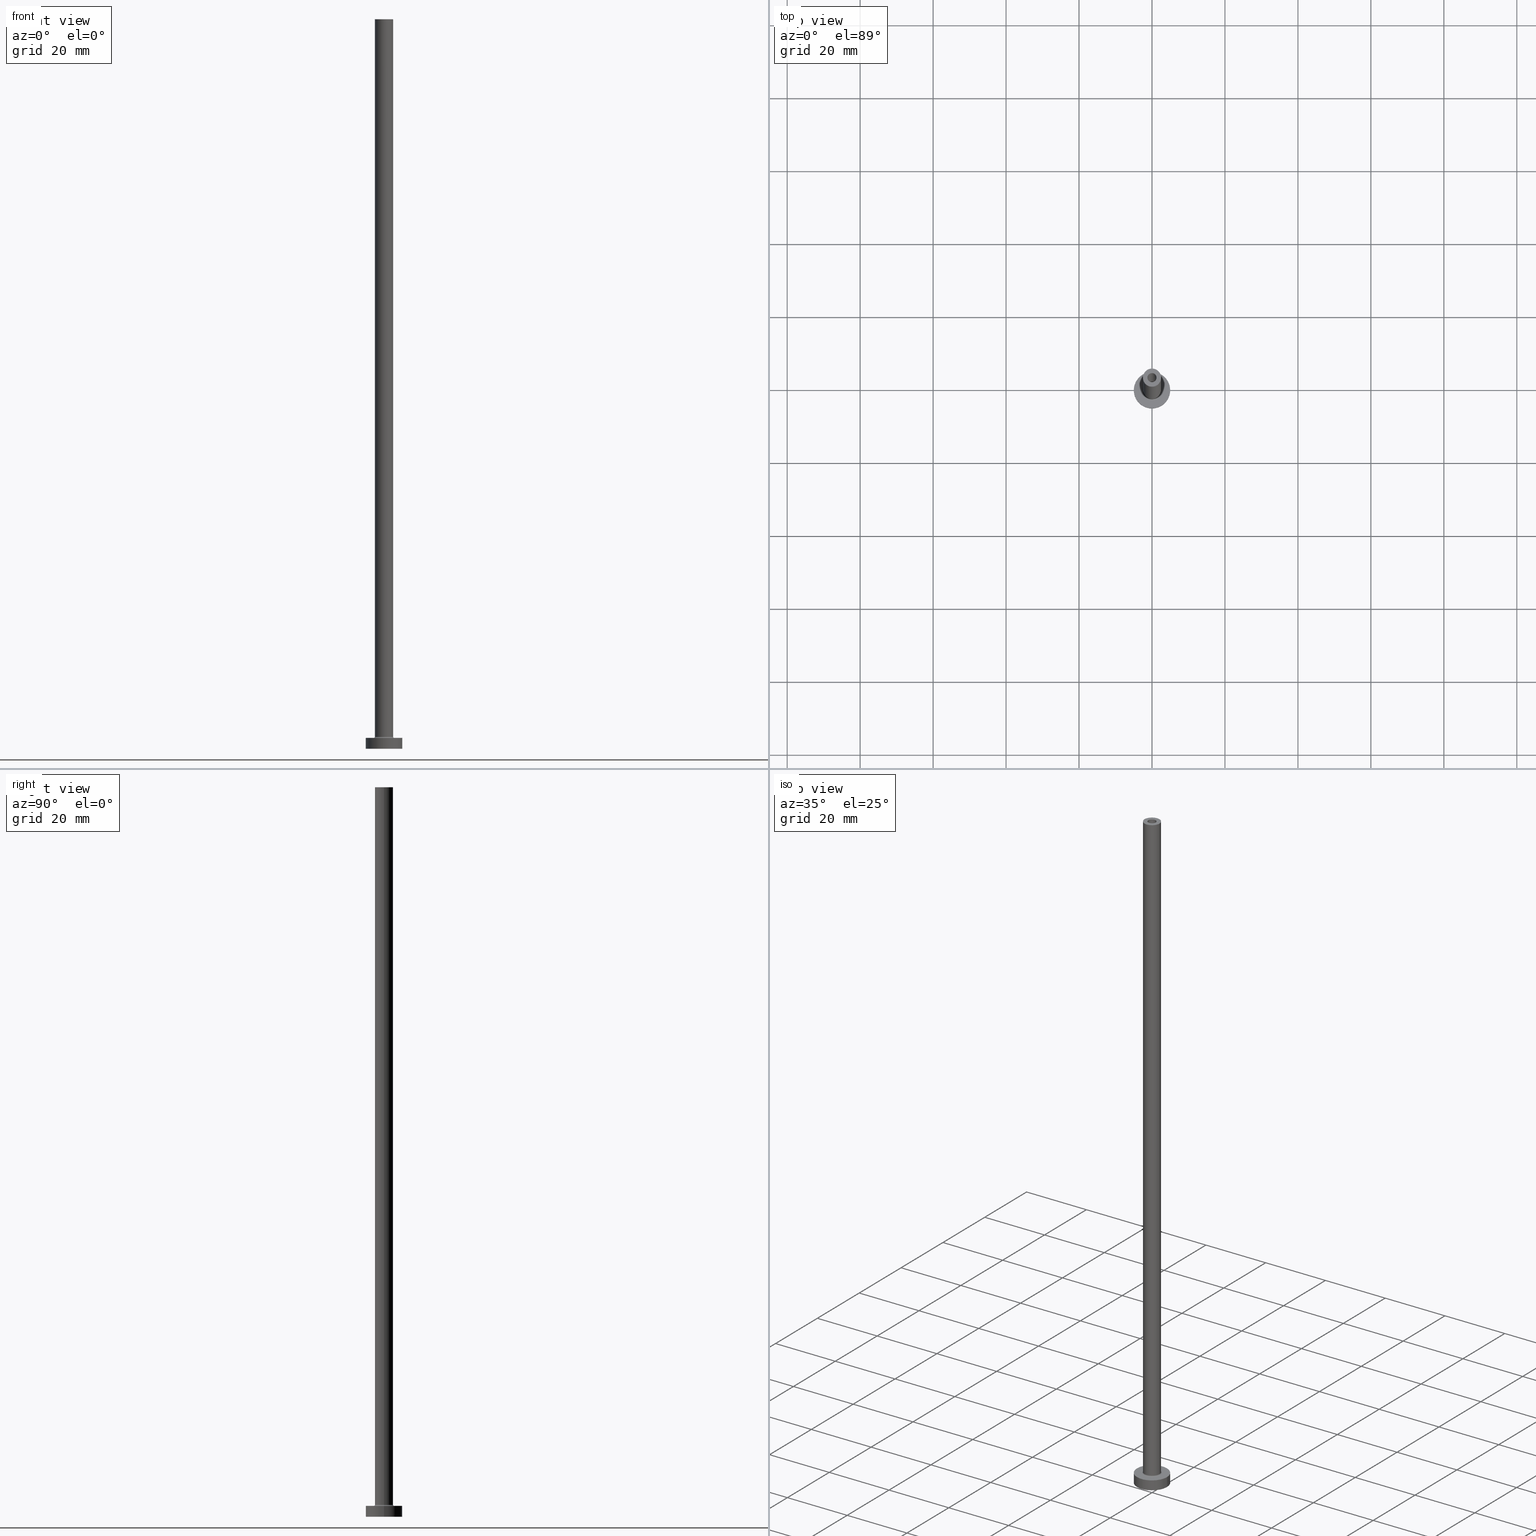
[diagram: canonical four-view strip — front | top / right | iso, engineering-drawing reading convention]
A machine part, canonical four-view strip (front | top / right | iso — engineering-drawing reading convention). The complete STEP part file that produces these views, byte-faithful:
ISO-10303-21;
HEADER;
FILE_DESCRIPTION (( 'STEP AP203' ),
    '1' );
FILE_NAME ('ef8b.STEP',
    '2024-01-17T11:39:49',
    ( '' ),
    ( '' ),
    'SwSTEP 2.0',
    'SolidWorks 2019',
    '' );
FILE_SCHEMA (( 'CONFIG_CONTROL_DESIGN' ));
ENDSEC;

DATA;
#1 = DIRECTION ( 'NONE',  ( 1.000000000000000000, 0.000000000000000000, -0.000000000000000000 ) ) ;
#2 = ORIENTED_EDGE ( 'NONE', *, *, #385, .F. ) ;
#3 = DIRECTION ( 'NONE',  ( -0.000000000000000000, -0.000000000000000000, -1.000000000000000000 ) ) ;
#4 = ORIENTED_EDGE ( 'NONE', *, *, #421, .T. ) ;
#5 = DIRECTION ( 'NONE',  ( 1.000000000000000000, 0.000000000000000000, 0.000000000000000000 ) ) ;
#6 = CARTESIAN_POINT ( 'NONE',  ( 0.000000000000000000, 0.000000000000000000, 3.299999999999997158 ) ) ;
#7 = ADVANCED_FACE ( 'NONE', ( #358 ), #306, .F. ) ;
#8 = DIRECTION ( 'NONE',  ( 0.000000000000000000, 0.000000000000000000, -1.000000000000000000 ) ) ;
#9 = DIRECTION ( 'NONE',  ( 1.000000000000000000, 0.000000000000000000, 0.000000000000000000 ) ) ;
#10 = DIRECTION ( 'NONE',  ( -1.000000000000000000, 0.000000000000000000, 0.000000000000000000 ) ) ;
#11 = VERTEX_POINT ( 'NONE', #151 ) ;
#12 = SECURITY_CLASSIFICATION ( '', '', #276 ) ;
#13 = CIRCLE ( 'NONE', #98, 1.399999999999999911 ) ;
#14 = FACE_OUTER_BOUND ( 'NONE', #255, .T. ) ;
#15 = CARTESIAN_POINT ( 'NONE',  ( 2.799999999999999822, 0.000000000000000000, 2.999999999999998668 ) ) ;
#16 = ORIENTED_EDGE ( 'NONE', *, *, #117, .T. ) ;
#17 = CYLINDRICAL_SURFACE ( 'NONE', #33, 5.000000000000000000 ) ;
#18 = DIRECTION ( 'NONE',  ( 0.000000000000000000, 0.000000000000000000, 1.000000000000000000 ) ) ;
#19 = VERTEX_POINT ( 'NONE', #182 ) ;
#20 = CARTESIAN_POINT ( 'NONE',  ( -2.500000000000000000, 0.000000000000000000, 200.0000000000000000 ) ) ;
#21 = DIRECTION ( 'NONE',  ( 0.000000000000000000, 0.000000000000000000, 1.000000000000000000 ) ) ;
#22 = AXIS2_PLACEMENT_3D ( 'NONE', #294, #460, #216 ) ;
#23 = CARTESIAN_POINT ( 'NONE',  ( -1.250000000000000000, 0.000000000000000000, 200.0000000000000000 ) ) ;
#24 = AXIS2_PLACEMENT_3D ( 'NONE', #367, #190, #333 ) ;
#25 = PLANE ( 'NONE',  #313 ) ;
#26 = CC_DESIGN_SECURITY_CLASSIFICATION ( #12, ( #417 ) ) ;
#27 = APPROVAL_ROLE ( '' ) ;
#28 = MECHANICAL_CONTEXT ( 'NONE', #134, 'mechanical' ) ;
#29 = AXIS2_PLACEMENT_3D ( 'NONE', #249, #288, #390 ) ;
#30 = DATE_AND_TIME ( #165, #350 ) ;
#31 = APPROVAL_DATE_TIME ( #30, #177 ) ;
#32 = EDGE_CURVE ( 'NONE', #149, #284, #322, .T. ) ;
#33 = AXIS2_PLACEMENT_3D ( 'NONE', #192, #407, #81 ) ;
#34 = CARTESIAN_POINT ( 'NONE',  ( 0.000000000000000000, 0.000000000000000000, 3.299999999999997158 ) ) ;
#35 = ORIENTED_EDGE ( 'NONE', *, *, #224, .F. ) ;
#36 = FACE_OUTER_BOUND ( 'NONE', #215, .T. ) ;
#37 = VERTEX_POINT ( 'NONE', #68 ) ;
#38 = CARTESIAN_POINT ( 'NONE',  ( 0.000000000000000000, 0.000000000000000000, 200.0000000000000000 ) ) ;
#39 = ORIENTED_EDGE ( 'NONE', *, *, #365, .F. ) ;
#40 = AXIS2_PLACEMENT_3D ( 'NONE', #38, #178, #220 ) ;
#41 = CIRCLE ( 'NONE', #66, 1.250000000000000000 ) ;
#42 = CARTESIAN_POINT ( 'NONE',  ( -2.799999999999999822, 3.429011037612589276E-16, 2.999999999999998668 ) ) ;
#43 = ORIENTED_EDGE ( 'NONE', *, *, #128, .T. ) ;
#44 = EDGE_CURVE ( 'NONE', #366, #355, #319, .T. ) ;
#45 = CARTESIAN_POINT ( 'NONE',  ( -1.399999999999999911, 0.000000000000000000, 168.9597979746446867 ) ) ;
#46 = LINE ( 'NONE', #45, #305 ) ;
#47 = ORIENTED_EDGE ( 'NONE', *, *, #186, .F. ) ;
#48 = TOROIDAL_SURFACE ( 'NONE', #321, 2.799999999999999822, 0.2999999999999999889 ) ;
#49 = DIRECTION ( 'NONE',  ( -0.000000000000000000, -0.000000000000000000, -1.000000000000000000 ) ) ;
#50 = CARTESIAN_POINT ( 'NONE',  ( -1.250000000000000000, 0.000000000000000000, 165.0000000000000000 ) ) ;
#51 = ORIENTED_EDGE ( 'NONE', *, *, #325, .T. ) ;
#52 = DIRECTION ( 'NONE',  ( 0.000000000000000000, 0.000000000000000000, 1.000000000000000000 ) ) ;
#53 = DIRECTION ( 'NONE',  ( 1.000000000000000000, 0.000000000000000000, 0.000000000000000000 ) ) ;
#54 = ADVANCED_FACE ( 'NONE', ( #256 ), #48, .F. ) ;
#55 = ORIENTED_EDGE ( 'NONE', *, *, #32, .F. ) ;
#56 = CARTESIAN_POINT ( 'NONE',  ( 5.000000000000000000, 6.123233995736766282E-16, 3.000000000000000000 ) ) ;
#57 = CARTESIAN_POINT ( 'NONE',  ( 2.500000000000000000, 3.061616997868383141E-16, 200.0000000000000000 ) ) ;
#58 = FACE_BOUND ( 'NONE', #226, .T. ) ;
#59 = COORDINATED_UNIVERSAL_TIME_OFFSET ( 1, 0, .AHEAD. ) ;
#60 = DATE_TIME_ROLE ( 'creation_date' ) ;
#61 = EDGE_CURVE ( 'NONE', #11, #251, #207, .T. ) ;
#62 = CALENDAR_DATE ( 2024, 17, 1 ) ;
#63 = CARTESIAN_POINT ( 'NONE',  ( 1.250000000000000000, 1.530808498934191571E-16, 200.0000000000000000 ) ) ;
#64 = VECTOR ( 'NONE', #265, 1000.000000000000000 ) ;
#65 = CARTESIAN_POINT ( 'NONE',  ( 0.000000000000000000, 0.000000000000000000, 3.000000000000000000 ) ) ;
#66 = AXIS2_PLACEMENT_3D ( 'NONE', #437, #118, #234 ) ;
#67 = ORIENTED_EDGE ( 'NONE', *, *, #44, .T. ) ;
#68 = CARTESIAN_POINT ( 'NONE',  ( 1.250000000000000000, 1.530808498934191571E-16, 165.0000000000000000 ) ) ;
#69 = EDGE_LOOP ( 'NONE', ( #339, #353, #236, #116 ) ) ;
#70 = CARTESIAN_POINT ( 'NONE',  ( 2.799999999999999822, 0.000000000000000000, 3.299999999999997158 ) ) ;
#71 = ORIENTED_EDGE ( 'NONE', *, *, #203, .T. ) ;
#72 = LOCAL_TIME ( 12, 39, 49.00000000000000000, #346 ) ;
#73 = CARTESIAN_POINT ( 'NONE',  ( 0.000000000000000000, 0.000000000000000000, 165.0000000000000000 ) ) ;
#74 = ORIENTED_EDGE ( 'NONE', *, *, #450, .F. ) ;
#75 = CC_DESIGN_PERSON_AND_ORGANIZATION_ASSIGNMENT ( #206, #382, ( #328 ) ) ;
#76 = AXIS2_PLACEMENT_3D ( 'NONE', #299, #439, #409 ) ;
#77 = DIRECTION ( 'NONE',  ( 0.000000000000000000, 0.000000000000000000, 1.000000000000000000 ) ) ;
#78 = ORIENTED_EDGE ( 'NONE', *, *, #360, .T. ) ;
#79 = CARTESIAN_POINT ( 'NONE',  ( -2.500000000000000000, 0.000000000000000000, 200.0000000000000000 ) ) ;
#80 = VERTEX_POINT ( 'NONE', #63 ) ;
#81 = DIRECTION ( 'NONE',  ( -1.000000000000000000, 0.000000000000000000, 0.000000000000000000 ) ) ;
#82 = CARTESIAN_POINT ( 'NONE',  ( 0.000000000000000000, 0.000000000000000000, 200.0000000000000000 ) ) ;
#83 = ORIENTED_EDGE ( 'NONE', *, *, #163, .T. ) ;
#84 = AXIS2_PLACEMENT_3D ( 'NONE', #302, #21, #115 ) ;
#85 = DIRECTION ( 'NONE',  ( 1.000000000000000000, 0.000000000000000000, 0.000000000000000000 ) ) ;
#86 = MANIFOLD_SOLID_BREP ( 'Odebrat vysunut�m4', #219 ) ;
#87 = DIRECTION ( 'NONE',  ( -1.000000000000000000, 1.224646799147353207E-16, 0.000000000000000000 ) ) ;
#88 = APPLICATION_CONTEXT ( 'configuration controlled 3d designs of mechanical parts and assemblies' ) ;
#89 = ORIENTED_EDGE ( 'NONE', *, *, #447, .T. ) ;
#90 = DIRECTION ( 'NONE',  ( -0.000000000000000000, -0.000000000000000000, -1.000000000000000000 ) ) ;
#91 = EDGE_CURVE ( 'NONE', #318, #37, #341, .T. ) ;
#92 = APPROVAL_PERSON_ORGANIZATION ( #418, #177, #27 ) ;
#93 = CARTESIAN_POINT ( 'NONE',  ( 0.000000000000000000, 0.000000000000000000, 0.000000000000000000 ) ) ;
#94 = APPLICATION_PROTOCOL_DEFINITION ( 'international standard', 'config_control_design', 1994, #88 ) ;
#95 = APPROVAL_DATE_TIME ( #248, #442 ) ;
#96 = DATE_TIME_ROLE ( 'classification_date' ) ;
#97 = CIRCLE ( 'NONE', #274, 5.000000000000000000 ) ;
#98 = AXIS2_PLACEMENT_3D ( 'NONE', #148, #142, #209 ) ;
#99 = DIRECTION ( 'NONE',  ( 0.000000000000000000, 0.000000000000000000, 1.000000000000000000 ) ) ;
#100 = COORDINATED_UNIVERSAL_TIME_OFFSET ( 1, 0, .AHEAD. ) ;
#101 = EDGE_CURVE ( 'NONE', #393, #318, #105, .T. ) ;
#102 = LINE ( 'NONE', #429, #445 ) ;
#103 = EDGE_LOOP ( 'NONE', ( #39, #71, #401, #405 ) ) ;
#104 = AXIS2_PLACEMENT_3D ( 'NONE', #269, #90, #308 ) ;
#105 = LINE ( 'NONE', #214, #384 ) ;
#106 = CIRCLE ( 'NONE', #139, 2.500000000000000000 ) ;
#107 = ORIENTED_EDGE ( 'NONE', *, *, #389, .F. ) ;
#108 = CARTESIAN_POINT ( 'NONE',  ( 1.250000000000000000, 1.530808498934191571E-16, 200.0000000000000000 ) ) ;
#109 = CC_DESIGN_PERSON_AND_ORGANIZATION_ASSIGNMENT ( #169, #205, ( #417 ) ) ;
#110 = EDGE_LOOP ( 'NONE', ( #327, #316 ) ) ;
#111 = CARTESIAN_POINT ( 'NONE',  ( -2.799999999999999822, 3.429011037612588783E-16, 3.299999999999997158 ) ) ;
#112 = ADVANCED_FACE ( 'NONE', ( #283 ), #349, .T. ) ;
#113 = EDGE_LOOP ( 'NONE', ( #174, #179 ) ) ;
#114 =( GEOMETRIC_REPRESENTATION_CONTEXT ( 3 ) GLOBAL_UNCERTAINTY_ASSIGNED_CONTEXT ( ( #223 ) ) GLOBAL_UNIT_ASSIGNED_CONTEXT ( ( #307, #270, #238 ) ) REPRESENTATION_CONTEXT ( 'NONE', 'WORKASPACE' ) );
#115 = DIRECTION ( 'NONE',  ( 1.000000000000000000, 0.000000000000000000, 0.000000000000000000 ) ) ;
#116 = ORIENTED_EDGE ( 'NONE', *, *, #235, .F. ) ;
#117 = EDGE_CURVE ( 'NONE', #284, #149, #124, .T. ) ;
#118 = DIRECTION ( 'NONE',  ( 0.000000000000000000, 0.000000000000000000, 1.000000000000000000 ) ) ;
#119 = CYLINDRICAL_SURFACE ( 'NONE', #104, 2.500000000000000000 ) ;
#120 = CYLINDRICAL_SURFACE ( 'NONE', #332, 1.399999999999999911 ) ;
#121 = EDGE_LOOP ( 'NONE', ( #2, #399 ) ) ;
#122 = FACE_OUTER_BOUND ( 'NONE', #113, .T. ) ;
#123 = DIRECTION ( 'NONE',  ( 1.000000000000000000, 0.000000000000000000, -0.000000000000000000 ) ) ;
#124 = CIRCLE ( 'NONE', #180, 2.799999999999999822 ) ;
#125 = ORIENTED_EDGE ( 'NONE', *, *, #61, .T. ) ;
#126 = AXIS2_PLACEMENT_3D ( 'NONE', #212, #352, #1 ) ;
#127 = CARTESIAN_POINT ( 'NONE',  ( -5.000000000000000000, 0.000000000000000000, 0.000000000000000000 ) ) ;
#128 = EDGE_CURVE ( 'NONE', #393, #80, #280, .T. ) ;
#129 = DIRECTION ( 'NONE',  ( 1.000000000000000000, 0.000000000000000000, 0.000000000000000000 ) ) ;
#130 = AXIS2_PLACEMENT_3D ( 'NONE', #334, #441, #449 ) ;
#131 = PRODUCT_RELATED_PRODUCT_CATEGORY ( 'detail', '', ( #328 ) ) ;
#132 = AXIS2_PLACEMENT_3D ( 'NONE', #272, #159, #370 ) ;
#133 = PERSON_AND_ORGANIZATION ( #452, #402 ) ;
#134 = APPLICATION_CONTEXT ( 'configuration controlled 3d designs of mechanical parts and assemblies' ) ;
#135 = COORDINATED_UNIVERSAL_TIME_OFFSET ( 1, 0, .AHEAD. ) ;
#136 = EDGE_CURVE ( 'NONE', #11, #291, #102, .T. ) ;
#137 = SHAPE_DEFINITION_REPRESENTATION ( #408, #171 ) ;
#138 = AXIS2_PLACEMENT_3D ( 'NONE', #438, #202, #195 ) ;
#139 = AXIS2_PLACEMENT_3D ( 'NONE', #374, #18, #53 ) ;
#140 = DIRECTION ( 'NONE',  ( 0.000000000000000000, 0.000000000000000000, 1.000000000000000000 ) ) ;
#141 = ORIENTED_EDGE ( 'NONE', *, *, #235, .T. ) ;
#142 = DIRECTION ( 'NONE',  ( -0.000000000000000000, -0.000000000000000000, -1.000000000000000000 ) ) ;
#143 = ORIENTED_EDGE ( 'NONE', *, *, #314, .F. ) ;
#144 = CYLINDRICAL_SURFACE ( 'NONE', #29, 5.000000000000000000 ) ;
#145 = CIRCLE ( 'NONE', #448, 0.2999999999999999334 ) ;
#146 = ORIENTED_EDGE ( 'NONE', *, *, #224, .T. ) ;
#147 = ADVANCED_FACE ( 'NONE', ( #323 ), #144, .T. ) ;
#148 = CARTESIAN_POINT ( 'NONE',  ( 0.000000000000000000, 0.000000000000000000, 0.000000000000000000 ) ) ;
#149 = VERTEX_POINT ( 'NONE', #42 ) ;
#150 = DIRECTION ( 'NONE',  ( 1.000000000000000000, 0.000000000000000000, 0.000000000000000000 ) ) ;
#151 = CARTESIAN_POINT ( 'NONE',  ( 1.399999999999999911, 1.714505518806294391E-16, 165.0000000000000000 ) ) ;
#152 = DESIGN_CONTEXT ( 'detailed design', #88, 'design' ) ;
#153 = CC_DESIGN_APPROVAL ( #177, ( #417 ) ) ;
#154 = FACE_OUTER_BOUND ( 'NONE', #253, .T. ) ;
#155 = ORIENTED_EDGE ( 'NONE', *, *, #91, .F. ) ;
#156 = DIRECTION ( 'NONE',  ( 0.000000000000000000, 0.000000000000000000, 1.000000000000000000 ) ) ;
#157 = CARTESIAN_POINT ( 'NONE',  ( 1.399999999999999911, 1.714505518806294391E-16, 0.000000000000000000 ) ) ;
#158 = ORIENTED_EDGE ( 'NONE', *, *, #101, .T. ) ;
#159 = DIRECTION ( 'NONE',  ( -0.000000000000000000, -0.000000000000000000, -1.000000000000000000 ) ) ;
#160 = DIRECTION ( 'NONE',  ( 0.000000000000000000, 0.000000000000000000, 1.000000000000000000 ) ) ;
#161 = CARTESIAN_POINT ( 'NONE',  ( 5.000000000000000000, 6.123233995736766282E-16, 0.000000000000000000 ) ) ;
#162 = VECTOR ( 'NONE', #8, 1000.000000000000000 ) ;
#163 = EDGE_CURVE ( 'NONE', #80, #37, #426, .T. ) ;
#164 = LINE ( 'NONE', #57, #64 ) ;
#165 = CALENDAR_DATE ( 2024, 17, 1 ) ;
#166 = CIRCLE ( 'NONE', #199, 2.500000000000000000 ) ;
#167 = APPROVAL_STATUS ( 'not_yet_approved' ) ;
#168 = AXIS2_PLACEMENT_3D ( 'NONE', #254, #326, #398 ) ;
#169 = PERSON_AND_ORGANIZATION ( #452, #402 ) ;
#170 = PERSON_AND_ORGANIZATION ( #452, #402 ) ;
#171 = ADVANCED_BREP_SHAPE_REPRESENTATION ( 'ef8b', ( #86, #436 ), #114 ) ;
#172 = AXIS2_PLACEMENT_3D ( 'NONE', #237, #156, #129 ) ;
#173 = DIRECTION ( 'NONE',  ( 0.000000000000000000, 0.000000000000000000, 1.000000000000000000 ) ) ;
#174 = ORIENTED_EDGE ( 'NONE', *, *, #360, .F. ) ;
#175 = DIRECTION ( 'NONE',  ( -0.000000000000000000, -0.000000000000000000, -1.000000000000000000 ) ) ;
#176 = ORIENTED_EDGE ( 'NONE', *, *, #239, .T. ) ;
#177 = APPROVAL ( #419, 'NEUR�EN�' ) ;
#178 = DIRECTION ( 'NONE',  ( -0.000000000000000000, -0.000000000000000000, -1.000000000000000000 ) ) ;
#179 = ORIENTED_EDGE ( 'NONE', *, *, #271, .F. ) ;
#180 = AXIS2_PLACEMENT_3D ( 'NONE', #65, #3, #5 ) ;
#181 = DIRECTION ( 'NONE',  ( 0.000000000000000000, 0.000000000000000000, -1.000000000000000000 ) ) ;
#182 = CARTESIAN_POINT ( 'NONE',  ( -1.399999999999999911, 0.000000000000000000, 0.000000000000000000 ) ) ;
#183 = DIRECTION ( 'NONE',  ( 1.224646799147353207E-16, 1.000000000000000000, -0.000000000000000000 ) ) ;
#184 = ADVANCED_FACE ( 'NONE', ( #250, #36 ), #391, .T. ) ;
#185 = ORIENTED_EDGE ( 'NONE', *, *, #246, .F. ) ;
#186 = EDGE_CURVE ( 'NONE', #291, #19, #13, .T. ) ;
#187 = CYLINDRICAL_SURFACE ( 'NONE', #24, 1.250000000000000000 ) ;
#188 = ORIENTED_EDGE ( 'NONE', *, *, #136, .F. ) ;
#189 = CIRCLE ( 'NONE', #130, 2.500000000000000000 ) ;
#190 = DIRECTION ( 'NONE',  ( 0.000000000000000000, 0.000000000000000000, -1.000000000000000000 ) ) ;
#191 = EDGE_LOOP ( 'NONE', ( #43, #83, #155, #410 ) ) ;
#192 = CARTESIAN_POINT ( 'NONE',  ( 0.000000000000000000, 0.000000000000000000, 3.000000000000000000 ) ) ;
#193 = CARTESIAN_POINT ( 'NONE',  ( 0.000000000000000000, 0.000000000000000000, 200.0000000000000000 ) ) ;
#194 = ORIENTED_EDGE ( 'NONE', *, *, #431, .T. ) ;
#195 = DIRECTION ( 'NONE',  ( 1.000000000000000000, 0.000000000000000000, 0.000000000000000000 ) ) ;
#196 = CARTESIAN_POINT ( 'NONE',  ( 2.500000000000000000, 3.061616997868383141E-16, 3.299999999999997158 ) ) ;
#197 = ADVANCED_FACE ( 'NONE', ( #252, #395 ), #292, .F. ) ;
#198 = DIRECTION ( 'NONE',  ( -0.000000000000000000, -0.000000000000000000, -1.000000000000000000 ) ) ;
#199 = AXIS2_PLACEMENT_3D ( 'NONE', #241, #52, #414 ) ;
#200 = CIRCLE ( 'NONE', #132, 1.399999999999999911 ) ;
#201 = EDGE_CURVE ( 'NONE', #210, #284, #145, .T. ) ;
#202 = DIRECTION ( 'NONE',  ( 0.000000000000000000, 0.000000000000000000, 1.000000000000000000 ) ) ;
#203 = EDGE_CURVE ( 'NONE', #375, #149, #394, .T. ) ;
#204 = DIRECTION ( 'NONE',  ( 0.000000000000000000, 0.000000000000000000, 1.000000000000000000 ) ) ;
#205 = PERSON_AND_ORGANIZATION_ROLE ( 'creator' ) ;
#206 = PERSON_AND_ORGANIZATION ( #452, #402 ) ;
#207 = CIRCLE ( 'NONE', #310, 1.399999999999999911 ) ;
#208 = ADVANCED_FACE ( 'NONE', ( #412 ), #335, .F. ) ;
#209 = DIRECTION ( 'NONE',  ( 1.000000000000000000, 0.000000000000000000, 0.000000000000000000 ) ) ;
#210 = VERTEX_POINT ( 'NONE', #196 ) ;
#211 = AXIS2_PLACEMENT_3D ( 'NONE', #93, #411, #85 ) ;
#212 = CARTESIAN_POINT ( 'NONE',  ( 0.000000000000000000, 0.000000000000000000, 3.000000000000000000 ) ) ;
#213 = EDGE_LOOP ( 'NONE', ( #430, #424, #368, #55 ) ) ;
#214 = CARTESIAN_POINT ( 'NONE',  ( -1.250000000000000000, 0.000000000000000000, 200.0000000000000000 ) ) ;
#215 = EDGE_LOOP ( 'NONE', ( #232, #336 ) ) ;
#216 = DIRECTION ( 'NONE',  ( 1.000000000000000000, 0.000000000000000000, 0.000000000000000000 ) ) ;
#217 = ADVANCED_FACE ( 'NONE', ( #329, #154 ), #266, .T. ) ;
#218 = EDGE_LOOP ( 'NONE', ( #16, #264 ) ) ;
#219 = CLOSED_SHELL ( 'NONE', ( #208, #279, #54, #112, #147, #415, #184, #383, #377, #217, #7, #343, #197, #282 ) ) ;
#220 = DIRECTION ( 'NONE',  ( -1.000000000000000000, 0.000000000000000000, 0.000000000000000000 ) ) ;
#221 = CIRCLE ( 'NONE', #76, 5.000000000000000000 ) ;
#222 = DIRECTION ( 'NONE',  ( 0.000000000000000000, 0.000000000000000000, 1.000000000000000000 ) ) ;
#223 = UNCERTAINTY_MEASURE_WITH_UNIT (LENGTH_MEASURE( 1.000000000000000082E-05 ), #307, 'distance_accuracy_value', 'NONE');
#224 = EDGE_CURVE ( 'NONE', #37, #318, #41, .T. ) ;
#225 = CARTESIAN_POINT ( 'NONE',  ( 0.000000000000000000, 0.000000000000000000, 168.9597979746446867 ) ) ;
#226 = EDGE_LOOP ( 'NONE', ( #259, #47 ) ) ;
#227 = DIRECTION ( 'NONE',  ( -1.000000000000000000, 0.000000000000000000, 0.000000000000000000 ) ) ;
#228 = ORIENTED_EDGE ( 'NONE', *, *, #450, .T. ) ;
#229 = LINE ( 'NONE', #20, #295 ) ;
#230 = VECTOR ( 'NONE', #198, 1000.000000000000000 ) ;
#231 = DIRECTION ( 'NONE',  ( 0.000000000000000000, 0.000000000000000000, 1.000000000000000000 ) ) ;
#232 = ORIENTED_EDGE ( 'NONE', *, *, #246, .T. ) ;
#233 = FACE_OUTER_BOUND ( 'NONE', #286, .T. ) ;
#234 = DIRECTION ( 'NONE',  ( 1.000000000000000000, 0.000000000000000000, 0.000000000000000000 ) ) ;
#235 = EDGE_CURVE ( 'NONE', #251, #19, #46, .T. ) ;
#236 = ORIENTED_EDGE ( 'NONE', *, *, #186, .T. ) ;
#237 = CARTESIAN_POINT ( 'NONE',  ( 0.000000000000000000, 0.000000000000000000, 165.0000000000000000 ) ) ;
#238 =( NAMED_UNIT ( * ) SI_UNIT ( $, .STERADIAN. ) SOLID_ANGLE_UNIT ( ) );
#239 = EDGE_CURVE ( 'NONE', #268, #397, #106, .T. ) ;
#240 = LOCAL_TIME ( 12, 39, 49.00000000000000000, #59 ) ;
#241 = CARTESIAN_POINT ( 'NONE',  ( 0.000000000000000000, 0.000000000000000000, 3.299999999999997158 ) ) ;
#242 = PERSON_AND_ORGANIZATION ( #452, #402 ) ;
#243 = CARTESIAN_POINT ( 'NONE',  ( 0.000000000000000000, 0.000000000000000000, 0.000000000000000000 ) ) ;
#244 = AXIS2_PLACEMENT_3D ( 'NONE', #111, #183, #87 ) ;
#245 = AXIS2_PLACEMENT_3D ( 'NONE', #193, #404, #10 ) ;
#246 = EDGE_CURVE ( 'NONE', #366, #363, #97, .T. ) ;
#247 = PERSON_AND_ORGANIZATION_ROLE ( 'creator' ) ;
#248 = DATE_AND_TIME ( #455, #440 ) ;
#249 = CARTESIAN_POINT ( 'NONE',  ( 0.000000000000000000, 0.000000000000000000, 3.000000000000000000 ) ) ;
#250 = FACE_BOUND ( 'NONE', #218, .T. ) ;
#251 = VERTEX_POINT ( 'NONE', #338 ) ;
#252 = FACE_BOUND ( 'NONE', #351, .T. ) ;
#253 = EDGE_LOOP ( 'NONE', ( #176, #303 ) ) ;
#254 = CARTESIAN_POINT ( 'NONE',  ( 0.000000000000000000, 0.000000000000000000, 165.0000000000000000 ) ) ;
#255 = EDGE_LOOP ( 'NONE', ( #188, #125, #141, #51 ) ) ;
#256 = FACE_OUTER_BOUND ( 'NONE', #103, .T. ) ;
#257 = ORIENTED_EDGE ( 'NONE', *, *, #271, .T. ) ;
#258 = FACE_OUTER_BOUND ( 'NONE', #69, .T. ) ;
#259 = ORIENTED_EDGE ( 'NONE', *, *, #325, .F. ) ;
#260 = DIRECTION ( 'NONE',  ( 0.000000000000000000, 0.000000000000000000, -1.000000000000000000 ) ) ;
#261 = FACE_OUTER_BOUND ( 'NONE', #324, .T. ) ;
#262 = CC_DESIGN_DATE_AND_TIME_ASSIGNMENT ( #420, #96, ( #12 ) ) ;
#263 = DIRECTION ( 'NONE',  ( 1.000000000000000000, 0.000000000000000000, 0.000000000000000000 ) ) ;
#264 = ORIENTED_EDGE ( 'NONE', *, *, #32, .T. ) ;
#265 = DIRECTION ( 'NONE',  ( -0.000000000000000000, -0.000000000000000000, -1.000000000000000000 ) ) ;
#266 = PLANE ( 'NONE',  #287 ) ;
#267 = AXIS2_PLACEMENT_3D ( 'NONE', #362, #423, #315 ) ;
#268 = VERTEX_POINT ( 'NONE', #79 ) ;
#269 = CARTESIAN_POINT ( 'NONE',  ( 0.000000000000000000, 0.000000000000000000, 200.0000000000000000 ) ) ;
#270 =( NAMED_UNIT ( * ) PLANE_ANGLE_UNIT ( ) SI_UNIT ( $, .RADIAN. ) );
#271 = EDGE_CURVE ( 'NONE', #433, #355, #361, .T. ) ;
#272 = CARTESIAN_POINT ( 'NONE',  ( 0.000000000000000000, 0.000000000000000000, 0.000000000000000000 ) ) ;
#273 = LOCAL_TIME ( 12, 39, 49.00000000000000000, #135 ) ;
#274 = AXIS2_PLACEMENT_3D ( 'NONE', #406, #77, #263 ) ;
#275 = PERSON_AND_ORGANIZATION ( #452, #402 ) ;
#276 = SECURITY_CLASSIFICATION_LEVEL ( 'unclassified' ) ;
#277 = CALENDAR_DATE ( 2024, 17, 1 ) ;
#278 = PERSON_AND_ORGANIZATION ( #452, #402 ) ;
#279 = ADVANCED_FACE ( 'NONE', ( #258 ), #120, .F. ) ;
#280 = CIRCLE ( 'NONE', #267, 1.250000000000000000 ) ;
#281 = APPROVAL_ROLE ( '' ) ;
#282 = ADVANCED_FACE ( 'NONE', ( #443 ), #187, .F. ) ;
#283 = FACE_OUTER_BOUND ( 'NONE', #330, .T. ) ;
#284 = VERTEX_POINT ( 'NONE', #15 ) ;
#285 = DIRECTION ( 'NONE',  ( 1.000000000000000000, 0.000000000000000000, 0.000000000000000000 ) ) ;
#286 = EDGE_LOOP ( 'NONE', ( #107, #372, #194, #413 ) ) ;
#287 = AXIS2_PLACEMENT_3D ( 'NONE', #296, #160, #123 ) ;
#288 = DIRECTION ( 'NONE',  ( -0.000000000000000000, -0.000000000000000000, -1.000000000000000000 ) ) ;
#289 = ORIENTED_EDGE ( 'NONE', *, *, #44, .F. ) ;
#290 = DIRECTION ( 'NONE',  ( 0.000000000000000000, -1.000000000000000000, 0.000000000000000000 ) ) ;
#291 = VERTEX_POINT ( 'NONE', #157 ) ;
#292 = PLANE ( 'NONE',  #168 ) ;
#293 = EDGE_CURVE ( 'NONE', #363, #366, #221, .T. ) ;
#294 = CARTESIAN_POINT ( 'NONE',  ( 0.000000000000000000, 0.000000000000000000, 3.000000000000000000 ) ) ;
#295 = VECTOR ( 'NONE', #49, 1000.000000000000000 ) ;
#296 = CARTESIAN_POINT ( 'NONE',  ( 0.000000000000000000, 0.000000000000000000, 200.0000000000000000 ) ) ;
#297 = ORIENTED_EDGE ( 'NONE', *, *, #293, .F. ) ;
#298 = CARTESIAN_POINT ( 'NONE',  ( 2.500000000000000000, 3.061616997868383141E-16, 200.0000000000000000 ) ) ;
#299 = CARTESIAN_POINT ( 'NONE',  ( 0.000000000000000000, 0.000000000000000000, 3.000000000000000000 ) ) ;
#300 = ORIENTED_EDGE ( 'NONE', *, *, #389, .T. ) ;
#301 = CARTESIAN_POINT ( 'NONE',  ( 0.000000000000000000, 0.000000000000000000, 0.000000000000000000 ) ) ;
#302 = CARTESIAN_POINT ( 'NONE',  ( 0.000000000000000000, 0.000000000000000000, 0.000000000000000000 ) ) ;
#303 = ORIENTED_EDGE ( 'NONE', *, *, #314, .T. ) ;
#304 = CARTESIAN_POINT ( 'NONE',  ( 0.000000000000000000, 0.000000000000000000, 168.9597979746446867 ) ) ;
#305 = VECTOR ( 'NONE', #260, 1000.000000000000000 ) ;
#306 = TOROIDAL_SURFACE ( 'NONE', #386, 2.799999999999999822, 0.2999999999999999889 ) ;
#307 =( LENGTH_UNIT ( ) NAMED_UNIT ( * ) SI_UNIT ( .MILLI., .METRE. ) );
#308 = DIRECTION ( 'NONE',  ( -1.000000000000000000, 0.000000000000000000, 0.000000000000000000 ) ) ;
#309 = CIRCLE ( 'NONE', #211, 5.000000000000000000 ) ;
#310 = AXIS2_PLACEMENT_3D ( 'NONE', #73, #173, #150 ) ;
#311 = DATE_AND_TIME ( #344, #240 ) ;
#312 = PERSON_AND_ORGANIZATION_ROLE ( 'design_supplier' ) ;
#313 = AXIS2_PLACEMENT_3D ( 'NONE', #301, #204, #373 ) ;
#314 = EDGE_CURVE ( 'NONE', #397, #268, #403, .T. ) ;
#315 = DIRECTION ( 'NONE',  ( 1.000000000000000000, 0.000000000000000000, 0.000000000000000000 ) ) ;
#316 = ORIENTED_EDGE ( 'NONE', *, *, #421, .F. ) ;
#317 = DIRECTION ( 'NONE',  ( 0.000000000000000000, 0.000000000000000000, 1.000000000000000000 ) ) ;
#318 = VERTEX_POINT ( 'NONE', #50 ) ;
#319 = LINE ( 'NONE', #357, #453 ) ;
#320 = EDGE_LOOP ( 'NONE', ( #297, #228, #257, #289 ) ) ;
#321 = AXIS2_PLACEMENT_3D ( 'NONE', #34, #140, #354 ) ;
#322 = CIRCLE ( 'NONE', #22, 2.799999999999999822 ) ;
#323 = FACE_OUTER_BOUND ( 'NONE', #320, .T. ) ;
#324 = EDGE_LOOP ( 'NONE', ( #74, #185, #67, #78 ) ) ;
#325 = EDGE_CURVE ( 'NONE', #19, #291, #200, .T. ) ;
#326 = DIRECTION ( 'NONE',  ( 0.000000000000000000, 0.000000000000000000, 1.000000000000000000 ) ) ;
#327 = ORIENTED_EDGE ( 'NONE', *, *, #128, .F. ) ;
#328 = PRODUCT ( 'ef8b', 'ef8b', '', ( #28 ) ) ;
#329 = FACE_BOUND ( 'NONE', #110, .T. ) ;
#330 = EDGE_LOOP ( 'NONE', ( #143, #300, #89, #435 ) ) ;
#331 = APPROVAL_PERSON_ORGANIZATION ( #278, #442, #281 ) ;
#332 = AXIS2_PLACEMENT_3D ( 'NONE', #225, #364, #227 ) ;
#333 = DIRECTION ( 'NONE',  ( -1.000000000000000000, 0.000000000000000000, 0.000000000000000000 ) ) ;
#334 = CARTESIAN_POINT ( 'NONE',  ( 0.000000000000000000, 0.000000000000000000, 3.299999999999997158 ) ) ;
#335 = CYLINDRICAL_SURFACE ( 'NONE', #245, 1.250000000000000000 ) ;
#336 = ORIENTED_EDGE ( 'NONE', *, *, #293, .T. ) ;
#337 = CARTESIAN_POINT ( 'NONE',  ( -5.000000000000000000, 0.000000000000000000, 3.000000000000000000 ) ) ;
#338 = CARTESIAN_POINT ( 'NONE',  ( -1.399999999999999911, 0.000000000000000000, 165.0000000000000000 ) ) ;
#339 = ORIENTED_EDGE ( 'NONE', *, *, #385, .T. ) ;
#340 = CC_DESIGN_APPROVAL ( #356, ( #458 ) ) ;
#341 = CIRCLE ( 'NONE', #459, 1.250000000000000000 ) ;
#342 = DIRECTION ( 'NONE',  ( -1.000000000000000000, 0.000000000000000000, 0.000000000000000000 ) ) ;
#343 = ADVANCED_FACE ( 'NONE', ( #14 ), #378, .F. ) ;
#344 = CALENDAR_DATE ( 2024, 17, 1 ) ;
#345 = CC_DESIGN_PERSON_AND_ORGANIZATION_ASSIGNMENT ( #170, #454, ( #12 ) ) ;
#346 = COORDINATED_UNIVERSAL_TIME_OFFSET ( 1, 0, .AHEAD. ) ;
#347 = COORDINATED_UNIVERSAL_TIME_OFFSET ( 1, 0, .AHEAD. ) ;
#348 = DATE_AND_TIME ( #62, #72 ) ;
#349 = CYLINDRICAL_SURFACE ( 'NONE', #40, 2.500000000000000000 ) ;
#350 = LOCAL_TIME ( 12, 39, 49.00000000000000000, #347 ) ;
#351 = EDGE_LOOP ( 'NONE', ( #428, #146 ) ) ;
#352 = DIRECTION ( 'NONE',  ( 0.000000000000000000, 0.000000000000000000, 1.000000000000000000 ) ) ;
#353 = ORIENTED_EDGE ( 'NONE', *, *, #136, .T. ) ;
#354 = DIRECTION ( 'NONE',  ( 1.000000000000000000, 0.000000000000000000, 0.000000000000000000 ) ) ;
#355 = VERTEX_POINT ( 'NONE', #127 ) ;
#356 = APPROVAL ( #167, 'NEUR�EN�' ) ;
#357 = CARTESIAN_POINT ( 'NONE',  ( -5.000000000000000000, 0.000000000000000000, 3.000000000000000000 ) ) ;
#358 = FACE_OUTER_BOUND ( 'NONE', #213, .T. ) ;
#359 = AXIS2_PLACEMENT_3D ( 'NONE', #82, #231, #371 ) ;
#360 = EDGE_CURVE ( 'NONE', #355, #433, #309, .T. ) ;
#361 = CIRCLE ( 'NONE', #84, 5.000000000000000000 ) ;
#362 = CARTESIAN_POINT ( 'NONE',  ( 0.000000000000000000, 0.000000000000000000, 200.0000000000000000 ) ) ;
#363 = VERTEX_POINT ( 'NONE', #379 ) ;
#364 = DIRECTION ( 'NONE',  ( 0.000000000000000000, 0.000000000000000000, -1.000000000000000000 ) ) ;
#365 = EDGE_CURVE ( 'NONE', #375, #210, #166, .T. ) ;
#366 = VERTEX_POINT ( 'NONE', #337 ) ;
#367 = CARTESIAN_POINT ( 'NONE',  ( 0.000000000000000000, 0.000000000000000000, 200.0000000000000000 ) ) ;
#368 = ORIENTED_EDGE ( 'NONE', *, *, #201, .T. ) ;
#369 = CIRCLE ( 'NONE', #172, 1.399999999999999911 ) ;
#370 = DIRECTION ( 'NONE',  ( 1.000000000000000000, 0.000000000000000000, 0.000000000000000000 ) ) ;
#371 = DIRECTION ( 'NONE',  ( 1.000000000000000000, 0.000000000000000000, 0.000000000000000000 ) ) ;
#372 = ORIENTED_EDGE ( 'NONE', *, *, #239, .F. ) ;
#373 = DIRECTION ( 'NONE',  ( 1.000000000000000000, 0.000000000000000000, -0.000000000000000000 ) ) ;
#374 = CARTESIAN_POINT ( 'NONE',  ( 0.000000000000000000, 0.000000000000000000, 200.0000000000000000 ) ) ;
#375 = VERTEX_POINT ( 'NONE', #416 ) ;
#376 = LINE ( 'NONE', #56, #230 ) ;
#377 = ADVANCED_FACE ( 'NONE', ( #233 ), #119, .T. ) ;
#378 = CYLINDRICAL_SURFACE ( 'NONE', #392, 1.399999999999999911 ) ;
#379 = CARTESIAN_POINT ( 'NONE',  ( 5.000000000000000000, 6.123233995736766282E-16, 3.000000000000000000 ) ) ;
#380 = CC_DESIGN_DATE_AND_TIME_ASSIGNMENT ( #311, #60, ( #458 ) ) ;
#381 = APPROVAL_DATE_TIME ( #348, #356 ) ;
#382 = PERSON_AND_ORGANIZATION_ROLE ( 'design_owner' ) ;
#383 = ADVANCED_FACE ( 'NONE', ( #58, #122 ), #25, .F. ) ;
#384 = VECTOR ( 'NONE', #181, 1000.000000000000000 ) ;
#385 = EDGE_CURVE ( 'NONE', #251, #11, #369, .T. ) ;
#386 = AXIS2_PLACEMENT_3D ( 'NONE', #6, #222, #9 ) ;
#387 = APPLICATION_PROTOCOL_DEFINITION ( 'international standard', 'config_control_design', 1994, #134 ) ;
#388 = APPROVAL_STATUS ( 'not_yet_approved' ) ;
#389 = EDGE_CURVE ( 'NONE', #397, #210, #164, .T. ) ;
#390 = DIRECTION ( 'NONE',  ( -1.000000000000000000, 0.000000000000000000, 0.000000000000000000 ) ) ;
#391 = PLANE ( 'NONE',  #126 ) ;
#392 = AXIS2_PLACEMENT_3D ( 'NONE', #304, #446, #342 ) ;
#393 = VERTEX_POINT ( 'NONE', #23 ) ;
#394 = CIRCLE ( 'NONE', #244, 0.2999999999999999334 ) ;
#395 = FACE_OUTER_BOUND ( 'NONE', #121, .T. ) ;
#396 = CC_DESIGN_PERSON_AND_ORGANIZATION_ASSIGNMENT ( #275, #247, ( #458 ) ) ;
#397 = VERTEX_POINT ( 'NONE', #298 ) ;
#398 = DIRECTION ( 'NONE',  ( 1.000000000000000000, 0.000000000000000000, -0.000000000000000000 ) ) ;
#399 = ORIENTED_EDGE ( 'NONE', *, *, #61, .F. ) ;
#400 = CARTESIAN_POINT ( 'NONE',  ( 0.000000000000000000, 0.000000000000000000, 165.0000000000000000 ) ) ;
#401 = ORIENTED_EDGE ( 'NONE', *, *, #117, .F. ) ;
#402 = ORGANIZATION ( 'NEUR�EN�', 'NEUR�EN�', '' ) ;
#403 = CIRCLE ( 'NONE', #359, 2.500000000000000000 ) ;
#404 = DIRECTION ( 'NONE',  ( 0.000000000000000000, 0.000000000000000000, -1.000000000000000000 ) ) ;
#405 = ORIENTED_EDGE ( 'NONE', *, *, #201, .F. ) ;
#406 = CARTESIAN_POINT ( 'NONE',  ( 0.000000000000000000, 0.000000000000000000, 3.000000000000000000 ) ) ;
#407 = DIRECTION ( 'NONE',  ( -0.000000000000000000, -0.000000000000000000, -1.000000000000000000 ) ) ;
#408 = PRODUCT_DEFINITION_SHAPE ( 'NONE', 'NONE',  #458 ) ;
#409 = DIRECTION ( 'NONE',  ( 1.000000000000000000, 0.000000000000000000, 0.000000000000000000 ) ) ;
#410 = ORIENTED_EDGE ( 'NONE', *, *, #101, .F. ) ;
#411 = DIRECTION ( 'NONE',  ( 0.000000000000000000, 0.000000000000000000, 1.000000000000000000 ) ) ;
#412 = FACE_OUTER_BOUND ( 'NONE', #191, .T. ) ;
#413 = ORIENTED_EDGE ( 'NONE', *, *, #365, .T. ) ;
#414 = DIRECTION ( 'NONE',  ( 1.000000000000000000, 0.000000000000000000, 0.000000000000000000 ) ) ;
#415 = ADVANCED_FACE ( 'NONE', ( #261 ), #17, .T. ) ;
#416 = CARTESIAN_POINT ( 'NONE',  ( -2.500000000000000000, 0.000000000000000000, 3.299999999999997158 ) ) ;
#417 = PRODUCT_DEFINITION_FORMATION_WITH_SPECIFIED_SOURCE ( 'LIBOVOLN�', '', #328, .NOT_KNOWN. ) ;
#418 = PERSON_AND_ORGANIZATION ( #452, #402 ) ;
#419 = APPROVAL_STATUS ( 'not_yet_approved' ) ;
#420 = DATE_AND_TIME ( #277, #273 ) ;
#421 = EDGE_CURVE ( 'NONE', #80, #393, #427, .T. ) ;
#422 = CC_DESIGN_APPROVAL ( #442, ( #12 ) ) ;
#423 = DIRECTION ( 'NONE',  ( 0.000000000000000000, 0.000000000000000000, 1.000000000000000000 ) ) ;
#424 = ORIENTED_EDGE ( 'NONE', *, *, #447, .F. ) ;
#425 = CC_DESIGN_PERSON_AND_ORGANIZATION_ASSIGNMENT ( #133, #312, ( #417 ) ) ;
#426 = LINE ( 'NONE', #108, #162 ) ;
#427 = CIRCLE ( 'NONE', #138, 1.250000000000000000 ) ;
#428 = ORIENTED_EDGE ( 'NONE', *, *, #91, .T. ) ;
#429 = CARTESIAN_POINT ( 'NONE',  ( 1.399999999999999911, 1.714505518806294391E-16, 168.9597979746446867 ) ) ;
#430 = ORIENTED_EDGE ( 'NONE', *, *, #203, .F. ) ;
#431 = EDGE_CURVE ( 'NONE', #268, #375, #229, .T. ) ;
#432 = DIRECTION ( 'NONE',  ( 0.000000000000000000, 0.000000000000000000, -1.000000000000000000 ) ) ;
#433 = VERTEX_POINT ( 'NONE', #161 ) ;
#434 = DIRECTION ( 'NONE',  ( 0.000000000000000000, 0.000000000000000000, -1.000000000000000000 ) ) ;
#435 = ORIENTED_EDGE ( 'NONE', *, *, #431, .F. ) ;
#436 = AXIS2_PLACEMENT_3D ( 'NONE', #243, #99, #456 ) ;
#437 = CARTESIAN_POINT ( 'NONE',  ( 0.000000000000000000, 0.000000000000000000, 165.0000000000000000 ) ) ;
#438 = CARTESIAN_POINT ( 'NONE',  ( 0.000000000000000000, 0.000000000000000000, 200.0000000000000000 ) ) ;
#439 = DIRECTION ( 'NONE',  ( 0.000000000000000000, 0.000000000000000000, 1.000000000000000000 ) ) ;
#440 = LOCAL_TIME ( 12, 39, 49.00000000000000000, #100 ) ;
#441 = DIRECTION ( 'NONE',  ( 0.000000000000000000, 0.000000000000000000, 1.000000000000000000 ) ) ;
#442 = APPROVAL ( #388, 'NEUR�EN�' ) ;
#443 = FACE_OUTER_BOUND ( 'NONE', #461, .T. ) ;
#444 = ORIENTED_EDGE ( 'NONE', *, *, #163, .F. ) ;
#445 = VECTOR ( 'NONE', #434, 1000.000000000000000 ) ;
#446 = DIRECTION ( 'NONE',  ( 0.000000000000000000, 0.000000000000000000, -1.000000000000000000 ) ) ;
#447 = EDGE_CURVE ( 'NONE', #210, #375, #189, .T. ) ;
#448 = AXIS2_PLACEMENT_3D ( 'NONE', #70, #290, #432 ) ;
#449 = DIRECTION ( 'NONE',  ( 1.000000000000000000, 0.000000000000000000, 0.000000000000000000 ) ) ;
#450 = EDGE_CURVE ( 'NONE', #363, #433, #376, .T. ) ;
#451 = APPROVAL_ROLE ( '' ) ;
#452 = PERSON ( 'NEUR�EN�', 'NEUR�EN�', 'NEUR�EN�', ('NEUR�EN�'), ('NEUR�EN�'), ('NEUR�EN�') ) ;
#453 = VECTOR ( 'NONE', #175, 1000.000000000000000 ) ;
#454 = PERSON_AND_ORGANIZATION_ROLE ( 'classification_officer' ) ;
#455 = CALENDAR_DATE ( 2024, 17, 1 ) ;
#456 = DIRECTION ( 'NONE',  ( 1.000000000000000000, 0.000000000000000000, 0.000000000000000000 ) ) ;
#457 = APPROVAL_PERSON_ORGANIZATION ( #242, #356, #451 ) ;
#458 = PRODUCT_DEFINITION ( 'NEZN�M�', '', #417, #152 ) ;
#459 = AXIS2_PLACEMENT_3D ( 'NONE', #400, #317, #285 ) ;
#460 = DIRECTION ( 'NONE',  ( -0.000000000000000000, -0.000000000000000000, -1.000000000000000000 ) ) ;
#461 = EDGE_LOOP ( 'NONE', ( #444, #4, #158, #35 ) ) ;
ENDSEC;
END-ISO-10303-21;
